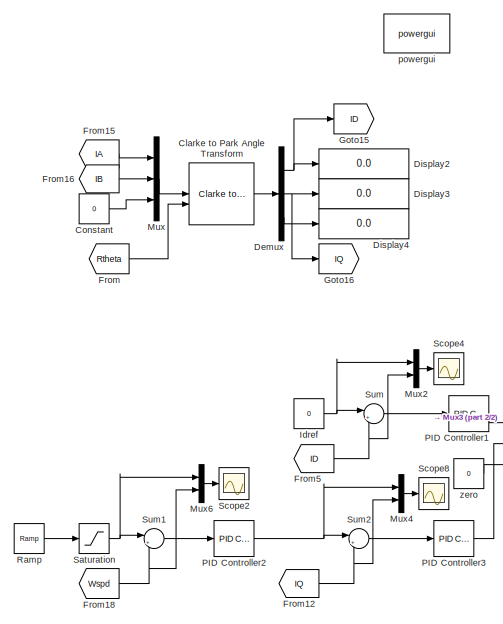
[diagram: root canvas - part 1/2, left side, full height]
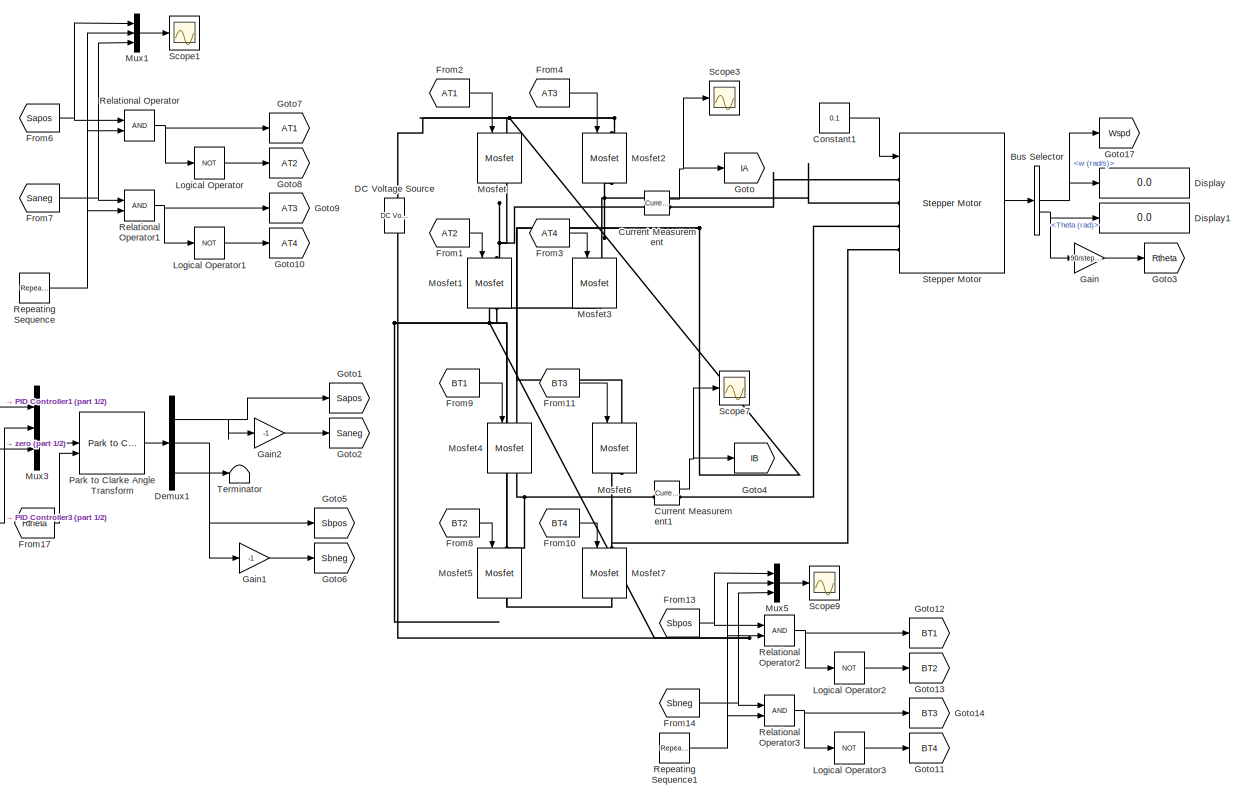
[diagram: root canvas - part 2/2, center side, full height]
MODEL slx_9adf913f240f
KIND model
CONFIG AbsTol = auto
CONFIG EnableMultiTasking = off
CONFIG FixedStep = 1e-6
CONFIG InitFcn = step_angle = 30;
CONFIG MaxStep = auto
CONFIG MinStep = auto
CONFIG RelTol = 1e-3
CONFIG SampleTimeConstraint = Unconstrained
CONFIG SolverName = FixedStepAuto
CONFIG StartTime = 0.0
CONFIG StopTime = 1.0
BLOCK [BusSelector] Bus Selector
  OutputSignals = w (rad/s),Theta (rad)
BLOCK [Reference] Clarke to Park Angle Transform  REF=eeTransforms/Clarke to Park
Angle Transform
  LibrarySourceBlock = ee_sl_lib/Mathematical\nTransforms/Clarke to Park\nAngle Transform
  SourceBlock = eeTransforms/Clarke to Park\nAngle Transform
  SourceType = Clarke to Park Angle Transform
BLOCK [Constant] Constant
  Value = 0
BLOCK [Constant] Constant1
  Value = 0.1
BLOCK [Reference] Current Measurement  REF=spsCurrentMeasurementLib/Current Measurement
  LibrarySourceBlock = sps_lib/Sensors and Measurements/Current Measurement
  SourceBlock = spsCurrentMeasurementLib/Current Measurement
  SourceType = Current Measurement
  UserDataPersistent = on
BLOCK [Reference] Current Measurement1  REF=spsCurrentMeasurementLib/Current Measurement
  LibrarySourceBlock = sps_lib/Sensors and Measurements/Current Measurement
  SourceBlock = spsCurrentMeasurementLib/Current Measurement
  SourceType = Current Measurement
  UserDataPersistent = on
BLOCK [Reference] DC Voltage Source  REF=spsDCVoltageSourceLib/DC Voltage Source
  LibrarySourceBlock = sps_lib/Sources/DC Voltage Source
  NameLocation = right
  SourceBlock = spsDCVoltageSourceLib/DC Voltage Source
  SourceType = DC Voltage Source
BLOCK [Demux] Demux
  Outputs = 3
BLOCK [Demux] Demux1
  Outputs = 3
BLOCK [Display] Display
  Decimation = 1
BLOCK [Display] Display1
  Decimation = 1
BLOCK [Display] Display2
  Decimation = 1
BLOCK [Display] Display3
  Decimation = 1
BLOCK [Display] Display4
  Decimation = 1
BLOCK [From] From
  GotoTag = Rtheta
BLOCK [From] From1
  GotoTag = AT2
BLOCK [From] From10
  GotoTag = BT4
BLOCK [From] From11
  GotoTag = BT3
BLOCK [From] From12
  GotoTag = IQ
BLOCK [From] From13
  GotoTag = Sbpos
BLOCK [From] From14
  GotoTag = Sbneg
BLOCK [From] From15
  GotoTag = IA
BLOCK [From] From16
  GotoTag = IB
BLOCK [From] From17
  GotoTag = Rtheta
BLOCK [From] From18
  GotoTag = Wspd
BLOCK [From] From2
  GotoTag = AT1
BLOCK [From] From3
  GotoTag = AT4
BLOCK [From] From4
  GotoTag = AT3
BLOCK [From] From5
  GotoTag = ID
BLOCK [From] From6
  GotoTag = Sapos
BLOCK [From] From7
  GotoTag = Saneg
BLOCK [From] From8
  GotoTag = BT2
BLOCK [From] From9
  GotoTag = BT1
BLOCK [Gain] Gain
  Gain = 90/step_angle
BLOCK [Gain] Gain1
  Gain = -1
BLOCK [Gain] Gain2
  Gain = -1
BLOCK [Goto] Goto
  GotoTag = IA
BLOCK [Goto] Goto1
  GotoTag = Sapos
BLOCK [Goto] Goto10
  GotoTag = AT4
BLOCK [Goto] Goto11
  GotoTag = BT4
BLOCK [Goto] Goto12
  GotoTag = BT1
BLOCK [Goto] Goto13
  GotoTag = BT2
BLOCK [Goto] Goto14
  GotoTag = BT3
BLOCK [Goto] Goto15
  GotoTag = ID
BLOCK [Goto] Goto16
  GotoTag = IQ
BLOCK [Goto] Goto17
  GotoTag = Wspd
BLOCK [Goto] Goto2
  GotoTag = Saneg
BLOCK [Goto] Goto3
  GotoTag = Rtheta
BLOCK [Goto] Goto4
  GotoTag = IB
BLOCK [Goto] Goto5
  GotoTag = Sbpos
BLOCK [Goto] Goto6
  GotoTag = Sbneg
BLOCK [Goto] Goto7
  GotoTag = AT1
BLOCK [Goto] Goto8
  GotoTag = AT2
BLOCK [Goto] Goto9
  GotoTag = AT3
BLOCK [Constant] Idref
  Value = 0
BLOCK [Logic] Logical Operator
  AllPortsSameDT = off
  Inputs = 1
  Operator = NOT
  OutDataTypeStr = boolean
BLOCK [Logic] Logical Operator1
  AllPortsSameDT = off
  Inputs = 1
  Operator = NOT
  OutDataTypeStr = boolean
BLOCK [Logic] Logical Operator2
  AllPortsSameDT = off
  Inputs = 1
  Operator = NOT
  OutDataTypeStr = boolean
BLOCK [Logic] Logical Operator3
  AllPortsSameDT = off
  Inputs = 1
  Operator = NOT
  OutDataTypeStr = boolean
BLOCK [Reference] Mosfet  REF=spsMosfetLib/Mosfet
  LibrarySourceBlock = sps_lib/Power Electronics/Mosfet
  NameLocation = left
  SourceBlock = spsMosfetLib/Mosfet
  SourceType = Mosfet
BLOCK [Reference] Mosfet1  REF=spsMosfetLib/Mosfet
  LibrarySourceBlock = sps_lib/Power Electronics/Mosfet
  NameLocation = left
  SourceBlock = spsMosfetLib/Mosfet
  SourceType = Mosfet
BLOCK [Reference] Mosfet2  REF=spsMosfetLib/Mosfet
  LibrarySourceBlock = sps_lib/Power Electronics/Mosfet
  NameLocation = left
  SourceBlock = spsMosfetLib/Mosfet
  SourceType = Mosfet
BLOCK [Reference] Mosfet3  REF=spsMosfetLib/Mosfet
  LibrarySourceBlock = sps_lib/Power Electronics/Mosfet
  NameLocation = left
  SourceBlock = spsMosfetLib/Mosfet
  SourceType = Mosfet
BLOCK [Reference] Mosfet4  REF=spsMosfetLib/Mosfet
  LibrarySourceBlock = sps_lib/Power Electronics/Mosfet
  NameLocation = left
  SourceBlock = spsMosfetLib/Mosfet
  SourceType = Mosfet
BLOCK [Reference] Mosfet5  REF=spsMosfetLib/Mosfet
  LibrarySourceBlock = sps_lib/Power Electronics/Mosfet
  NameLocation = left
  SourceBlock = spsMosfetLib/Mosfet
  SourceType = Mosfet
BLOCK [Reference] Mosfet6  REF=spsMosfetLib/Mosfet
  LibrarySourceBlock = sps_lib/Power Electronics/Mosfet
  NameLocation = left
  SourceBlock = spsMosfetLib/Mosfet
  SourceType = Mosfet
BLOCK [Reference] Mosfet7  REF=spsMosfetLib/Mosfet
  LibrarySourceBlock = sps_lib/Power Electronics/Mosfet
  NameLocation = left
  SourceBlock = spsMosfetLib/Mosfet
  SourceType = Mosfet
BLOCK [Mux] Mux
  DisplayOption = bar
  Inputs = 3
BLOCK [Mux] Mux1
  DisplayOption = bar
  Inputs = 3
BLOCK [Mux] Mux2
  DisplayOption = bar
  Inputs = 2
BLOCK [Mux] Mux3
  DisplayOption = bar
  Inputs = 3
BLOCK [Mux] Mux4
  DisplayOption = bar
  Inputs = 2
BLOCK [Mux] Mux5
  DisplayOption = bar
  Inputs = 3
BLOCK [Mux] Mux6
  DisplayOption = bar
  Inputs = 2
BLOCK [Reference] PID Controller1  REF=slpidlib/PID Controller
  SourceBlock = slpidlib/PID Controller
  SourceType = PID 1dof
BLOCK [Reference] PID Controller2  REF=slpidlib/PID Controller
  SourceBlock = slpidlib/PID Controller
  SourceType = PID 1dof
BLOCK [Reference] PID Controller3  REF=slpidlib/PID Controller
  SourceBlock = slpidlib/PID Controller
  SourceType = PID 1dof
BLOCK [Reference] Park to Clarke Angle Transform  REF=eeTransforms/Park to Clarke
Angle Transform
  LibrarySourceBlock = ee_sl_lib/Mathematical\nTransforms/Park to Clarke\nAngle Transform
  SourceBlock = eeTransforms/Park to Clarke\nAngle Transform
  SourceType = Park to Clarke Angle Transform
BLOCK [Reference] Ramp  REF=simulink/Sources/Ramp
  SourceBlock = simulink/Sources/Ramp
  SourceType = Ramp
BLOCK [RelationalOperator] Relational Operator
  InputSameDT = off
  OutDataTypeStr = boolean
BLOCK [RelationalOperator] Relational Operator1
  InputSameDT = off
  OutDataTypeStr = boolean
BLOCK [RelationalOperator] Relational Operator2
  InputSameDT = off
  OutDataTypeStr = boolean
BLOCK [RelationalOperator] Relational Operator3
  InputSameDT = off
  OutDataTypeStr = boolean
BLOCK [Reference] Repeating Sequence  REF=simulink/Sources/Repeating
Sequence
  SourceBlock = simulink/Sources/Repeating\nSequence
  SourceType = Repeating table
BLOCK [Reference] Repeating Sequence1  REF=simulink/Sources/Repeating
Sequence
  SourceBlock = simulink/Sources/Repeating\nSequence
  SourceType = Repeating table
BLOCK [Saturate] Saturation
  LowerLimit = -2*pi*75
  UpperLimit = 2*pi*75
BLOCK [Scope] Scope1
  Floating = off
  NumInputPorts = 1
  ScopeSpecificationString = Simulink.scopes.TimeScopeBlockCfg('CurrentConfiguration', extmgr.ConfigurationSet(extmgr.Configuration('Core','General UI',true),extmgr.Configuration('Core','Source UI',true),extmgr.Configuration('Sources','WiredSimulink',true,'DataLoggingSaveFormat','Array','DataLoggingDecimation','1','DataLoggingDecimateData',true,'DataLoggingVariableName','ScopeData4'),extmgr.Configuration('Visuals','Time Domai...<+1924ch>
BLOCK [Scope] Scope2
  Floating = off
  NumInputPorts = 1
  ScopeSpecificationString = Simulink.scopes.TimeScopeBlockCfg('CurrentConfiguration', extmgr.ConfigurationSet(extmgr.Configuration('Core','General UI',true),extmgr.Configuration('Core','Source UI',true),extmgr.Configuration('Sources','WiredSimulink',true,'DataLoggingVariableName','ScopeData2','DataLoggingSaveFormat','Array','DataLoggingDecimation','1','DataLoggingDecimateData',true),extmgr.Configuration('Visuals','Time Domai...<+1879ch>
BLOCK [Scope] Scope3
  Floating = off
  NumInputPorts = 1
  ScopeSpecificationString = Simulink.scopes.TimeScopeBlockCfg('CurrentConfiguration', extmgr.ConfigurationSet(extmgr.Configuration('Core','General UI',true),extmgr.Configuration('Core','Source UI',true),extmgr.Configuration('Sources','WiredSimulink',true,'DataLoggingVariableName','ScopeData3','DataLoggingSaveFormat','Array','DataLoggingDecimation','1','DataLoggingDecimateData',true),extmgr.Configuration('Visuals','Time Domai...<+1777ch>
BLOCK [Scope] Scope4
  Floating = off
  NumInputPorts = 1
  ScopeSpecificationString = Simulink.scopes.TimeScopeBlockCfg('CurrentConfiguration', extmgr.ConfigurationSet(extmgr.Configuration('Core','General UI',true),extmgr.Configuration('Core','Source UI',true),extmgr.Configuration('Sources','WiredSimulink',true,'DataLoggingVariableName','ScopeData5','DataLoggingSaveFormat','Array','DataLoggingDecimation','1','DataLoggingDecimateData',true),extmgr.Configuration('Visuals','Time Domai...<+1862ch>
BLOCK [Scope] Scope7
  Floating = off
  NumInputPorts = 1
  ScopeSpecificationString = Simulink.scopes.TimeScopeBlockCfg('CurrentConfiguration', extmgr.ConfigurationSet(extmgr.Configuration('Core','General UI',true),extmgr.Configuration('Core','Source UI',true),extmgr.Configuration('Sources','WiredSimulink',true,'DataLoggingSaveFormat','Array','DataLoggingDecimation','1','DataLoggingDecimateData',true),extmgr.Configuration('Visuals','Time Domain',true,'SerializedDisplays',{struct('M...<+1861ch>
BLOCK [Scope] Scope8
  Floating = off
  NumInputPorts = 1
  ScopeSpecificationString = Simulink.scopes.TimeScopeBlockCfg('CurrentConfiguration', extmgr.ConfigurationSet(extmgr.Configuration('Core','General UI',true),extmgr.Configuration('Core','Source UI',true),extmgr.Configuration('Sources','WiredSimulink',true,'DataLoggingVariableName','ScopeData1','DataLoggingSaveFormat','Array','DataLoggingDecimation','1','DataLoggingDecimateData',true),extmgr.Configuration('Visuals','Time Domai...<+1920ch>
BLOCK [Scope] Scope9
  Floating = off
  NumInputPorts = 1
  ScopeSpecificationString = Simulink.scopes.TimeScopeBlockCfg('CurrentConfiguration', extmgr.ConfigurationSet(extmgr.Configuration('Core','General UI',true),extmgr.Configuration('Core','Source UI',true),extmgr.Configuration('Sources','WiredSimulink',true,'DataLoggingSaveFormat','Array','DataLoggingDecimation','1','DataLoggingDecimateData',true,'DataLoggingVariableName','ScopeData2'),extmgr.Configuration('Visuals','Time Domai...<+1885ch>
BLOCK [Reference] Stepper Motor  REF=spsStepperMotorLib/Stepper Motor
  LibrarySourceBlock = sps_lib/Electrical Machines/Stepper Motor
  SourceBlock = spsStepperMotorLib/Stepper Motor
  SourceType = Stepper Motor
BLOCK [Sum] Sum
  Inputs = |+-
BLOCK [Sum] Sum1
  Inputs = |+-
BLOCK [Sum] Sum2
  Inputs = |+-
BLOCK [Terminator] Terminator
BLOCK [Reference] powergui  REF=sps_lib/powergui
  LibrarySourceBlock = sps_lib/powergui
  Priority = 1
  SourceBlock = sps_lib/powergui
  SourceType = PSB option menu block
BLOCK [Constant] zero
  Value = 0
NET Bus Selector:1 -> Display:1, Goto17:1
NET Bus Selector:2 -> Display1:1, Gain:1
LINE Clarke to Park Angle Transform:1 -> Demux:1
LINE Constant1:1 -> Stepper Motor:1
LINE Constant:1 -> Mux:3
NET Current Measurement1:1 -> Goto4:1, Scope7:1
NET Current Measurement:1 -> Goto:1, Scope3:1
NET Demux1:1 -> Gain2:1, Goto1:1
NET Demux1:2 -> Gain1:1, Goto5:1
LINE Demux1:3 -> Terminator:1
NET Demux:1 -> Display2:1, Goto15:1
NET Demux:2 -> Display3:1, Goto16:1
LINE Demux:3 -> Display4:1
LINE From10:1 -> Mosfet7:1
LINE From11:1 -> Mosfet6:1
NET From12:1 -> Mux4:2, Sum2:2
NET From13:1 -> Mux5:1, Relational Operator2:1
NET From14:1 -> Mux5:3, Relational Operator3:1
LINE From15:1 -> Mux:1
LINE From16:1 -> Mux:2
LINE From17:1 -> Park to Clarke Angle Transform:2
NET From18:1 -> Mux6:2, Sum1:2
LINE From1:1 -> Mosfet1:1
LINE From2:1 -> Mosfet:1
LINE From3:1 -> Mosfet3:1
LINE From4:1 -> Mosfet2:1
NET From5:1 -> Mux2:2, Sum:2
NET From6:1 -> Mux1:1, Relational Operator:1
NET From7:1 -> Mux1:3, Relational Operator1:1
LINE From8:1 -> Mosfet5:1
LINE From9:1 -> Mosfet4:1
LINE From:1 -> Clarke to Park Angle Transform:2
LINE Gain1:1 -> Goto6:1
LINE Gain2:1 -> Goto2:1
LINE Gain:1 -> Goto3:1
NET Idref:1 -> Mux2:1, Sum:1
LINE Logical Operator1:1 -> Goto10:1
LINE Logical Operator2:1 -> Goto13:1
LINE Logical Operator3:1 -> Goto11:1
LINE Logical Operator:1 -> Goto8:1
LINE Mux1:1 -> Scope1:1
LINE Mux2:1 -> Scope4:1
LINE Mux3:1 -> Park to Clarke Angle Transform:1
LINE Mux4:1 -> Scope8:1
LINE Mux5:1 -> Scope9:1
LINE Mux6:1 -> Scope2:1
LINE Mux:1 -> Clarke to Park Angle Transform:1
LINE PID Controller1:1 -> Mux3:1
NET PID Controller2:1 -> Mux4:1, Sum2:1
LINE PID Controller3:1 -> Mux3:2
LINE Park to Clarke Angle Transform:1 -> Demux1:1
LINE Ramp:1 -> Saturation:1
NET Relational Operator1:1 -> Goto9:1, Logical Operator1:1
NET Relational Operator2:1 -> Goto12:1, Logical Operator2:1
NET Relational Operator3:1 -> Goto14:1, Logical Operator3:1
NET Relational Operator:1 -> Goto7:1, Logical Operator:1
NET Repeating Sequence1:1 -> Mux5:2, Relational Operator2:2, Relational Operator3:2
NET Repeating Sequence:1 -> Mux1:2, Relational Operator1:2, Relational Operator:2
NET Saturation:1 -> Mux6:1, Sum1:1
LINE Stepper Motor:1 -> Bus Selector:1
LINE Sum1:1 -> PID Controller2:1
LINE Sum2:1 -> PID Controller3:1
LINE Sum:1 -> PID Controller1:1
LINE zero:1 -> Mux3:3
PNET net1: Current Measurement1:LConn1 -- Mosfet4:RConn1 -- Mosfet5:LConn1
PLINE Current Measurement1:RConn1 -- Stepper Motor:LConn3
PNET net2: Current Measurement:LConn1 -- Mosfet1:LConn1 -- Mosfet:RConn1
PLINE Current Measurement:RConn1 -- Stepper Motor:LConn1
PNET net3: DC Voltage Source:LConn1 -- Mosfet1:RConn1 -- Mosfet3:RConn1 -- Mosfet5:RConn1 -- Mosfet7:RConn1
PNET net4: DC Voltage Source:RConn1 -- Mosfet2:LConn1 -- Mosfet4:LConn1 -- Mosfet6:LConn1 -- Mosfet:LConn1
PNET net5: Mosfet2:RConn1 -- Mosfet3:LConn1 -- Stepper Motor:LConn2
PNET net6: Mosfet6:RConn1 -- Mosfet7:LConn1 -- Stepper Motor:LConn4
note: NET lines group one-source signal fan-out (src -> all destinations, sorted); 1:1 wires keep LINE; PNET lines group multi-terminal physical nets as a canonical sorted terminal list (undirected conserving connections); 2-terminal nets keep the pairwise PLINE form
